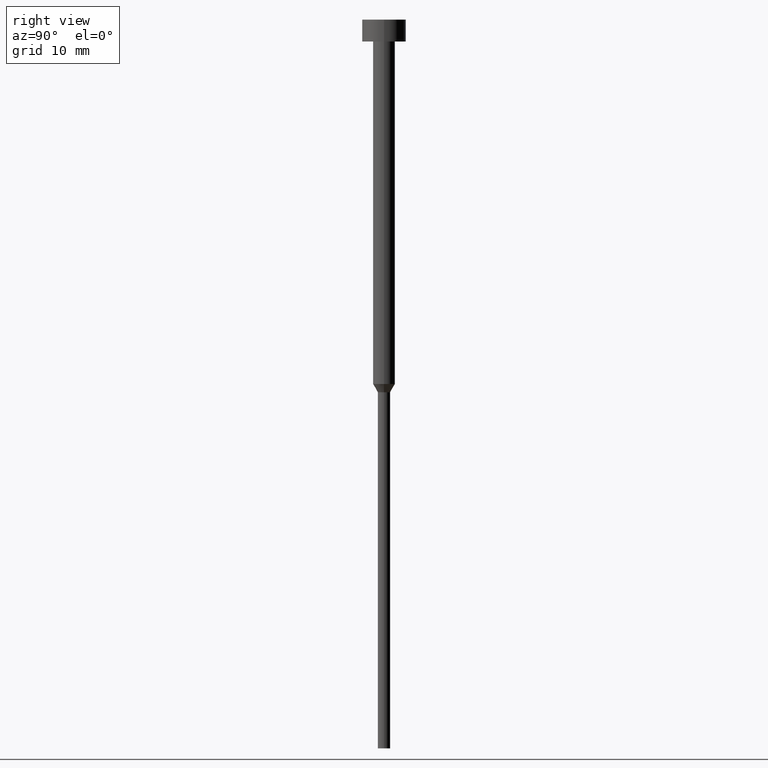
[diagram: clean part render]
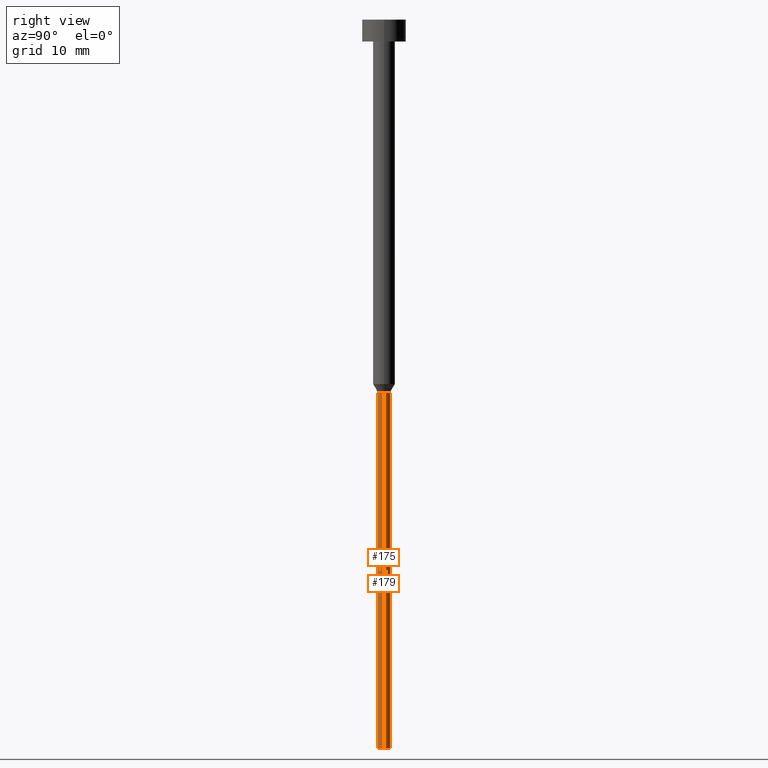
[diagram: same view with one multi-face feature highlighted, each face labeled with its STEP entity id]
A machine part, right view. The highlighted faces form ONE feature: a constant-radius fillet chain: 2 tangent blend faces with common blend radius 0.85 mm. The faces share edges in the B-rep.
Their STEP definitions:
[1] entity #175 (Cylinder):
#5 = ORIENTED_EDGE ( 'NONE', *, *, #164, .F. ) ;
#28 = CARTESIAN_POINT ( 'NONE',  ( -0.8499999999999998668, 1.040949779275250017E-16, 0.000000000000000000 ) ) ;
#37 = VERTEX_POINT ( 'NONE', #330 ) ;
#43 = AXIS2_PLACEMENT_3D ( 'NONE', #79, #327, #243 ) ;
#53 = DIRECTION ( 'NONE',  ( -0.000000000000000000, -0.000000000000000000, 1.000000000000000000 ) ) ;
#55 = CARTESIAN_POINT ( 'NONE',  ( 0.8499999999999998668, 0.000000000000000000, -51.12583302491977122 ) ) ;
#76 = VERTEX_POINT ( 'NONE', #304 ) ;
#79 = CARTESIAN_POINT ( 'NONE',  ( 0.000000000000000000, 0.000000000000000000, 0.000000000000000000 ) ) ;
#80 = EDGE_CURVE ( 'NONE', #233, #37, #154, .T. ) ;
#87 = CARTESIAN_POINT ( 'NONE',  ( 0.000000000000000000, 0.000000000000000000, -100.0000000000000000 ) ) ;
#107 = DIRECTION ( 'NONE',  ( -0.000000000000000000, -0.000000000000000000, 1.000000000000000000 ) ) ;
#110 = CARTESIAN_POINT ( 'NONE',  ( 0.000000000000000000, 0.000000000000000000, -51.12583302491977122 ) ) ;
#114 = DIRECTION ( 'NONE',  ( -0.000000000000000000, -0.000000000000000000, 1.000000000000000000 ) ) ;
#144 = CARTESIAN_POINT ( 'NONE',  ( 0.8499999999999998668, 0.000000000000000000, 0.000000000000000000 ) ) ;
#148 = CIRCLE ( 'NONE', #277, 0.8499999999999998668 ) ;
#154 = CIRCLE ( 'NONE', #289, 0.8499999999999998668 ) ;
#161 = EDGE_CURVE ( 'NONE', #233, #76, #184, .T. ) ;
#164 = EDGE_CURVE ( 'NONE', #76, #234, #148, .T. ) ;
#165 = DIRECTION ( 'NONE',  ( 1.000000000000000000, 0.000000000000000000, 0.000000000000000000 ) ) ;
#173 = VECTOR ( 'NONE', #107, 1000.000000000000000 ) ;
#175 = ADVANCED_FACE ( 'NONE', ( #354 ), #245, .T. ) ;
#184 = LINE ( 'NONE', #28, #195 ) ;
#186 = ORIENTED_EDGE ( 'NONE', *, *, #161, .F. ) ;
#194 = DIRECTION ( 'NONE',  ( 1.000000000000000000, 0.000000000000000000, 0.000000000000000000 ) ) ;
#195 = VECTOR ( 'NONE', #114, 1000.000000000000000 ) ;
#200 = DIRECTION ( 'NONE',  ( -0.000000000000000000, -0.000000000000000000, 1.000000000000000000 ) ) ;
#210 = EDGE_LOOP ( 'NONE', ( #186, #279, #256, #5 ) ) ;
#228 = CARTESIAN_POINT ( 'NONE',  ( -0.8499999999999998668, 1.040949779275250017E-16, -100.0000000000000000 ) ) ;
#233 = VERTEX_POINT ( 'NONE', #228 ) ;
#234 = VERTEX_POINT ( 'NONE', #55 ) ;
#243 = DIRECTION ( 'NONE',  ( 1.000000000000000000, 0.000000000000000000, 0.000000000000000000 ) ) ;
#245 = CYLINDRICAL_SURFACE ( 'NONE', #43, 0.8499999999999998668 ) ;
#247 = LINE ( 'NONE', #144, #173 ) ;
#256 = ORIENTED_EDGE ( 'NONE', *, *, #312, .T. ) ;
#277 = AXIS2_PLACEMENT_3D ( 'NONE', #110, #200, #194 ) ;
#279 = ORIENTED_EDGE ( 'NONE', *, *, #80, .T. ) ;
#289 = AXIS2_PLACEMENT_3D ( 'NONE', #87, #53, #165 ) ;
#304 = CARTESIAN_POINT ( 'NONE',  ( -0.8499999999999998668, 1.040949779275250017E-16, -51.12583302491977122 ) ) ;
#312 = EDGE_CURVE ( 'NONE', #37, #234, #247, .T. ) ;
#327 = DIRECTION ( 'NONE',  ( -0.000000000000000000, -0.000000000000000000, 1.000000000000000000 ) ) ;
#330 = CARTESIAN_POINT ( 'NONE',  ( 0.8499999999999998668, 0.000000000000000000, -100.0000000000000000 ) ) ;
#354 = FACE_OUTER_BOUND ( 'NONE', #210, .T. ) ;
[2] entity #179 (Cylinder):
#1 = DIRECTION ( 'NONE',  ( -0.000000000000000000, -0.000000000000000000, 1.000000000000000000 ) ) ;
#6 = CIRCLE ( 'NONE', #282, 0.8499999999999998668 ) ;
#7 = CYLINDRICAL_SURFACE ( 'NONE', #74, 0.8499999999999998668 ) ;
#28 = CARTESIAN_POINT ( 'NONE',  ( -0.8499999999999998668, 1.040949779275250017E-16, 0.000000000000000000 ) ) ;
#31 = EDGE_CURVE ( 'NONE', #234, #76, #128, .T. ) ;
#35 = CARTESIAN_POINT ( 'NONE',  ( 0.000000000000000000, 0.000000000000000000, -51.12583302491977122 ) ) ;
#37 = VERTEX_POINT ( 'NONE', #330 ) ;
#55 = CARTESIAN_POINT ( 'NONE',  ( 0.8499999999999998668, 0.000000000000000000, -51.12583302491977122 ) ) ;
#74 = AXIS2_PLACEMENT_3D ( 'NONE', #139, #1, #224 ) ;
#76 = VERTEX_POINT ( 'NONE', #304 ) ;
#97 = ORIENTED_EDGE ( 'NONE', *, *, #161, .T. ) ;
#105 = ORIENTED_EDGE ( 'NONE', *, *, #312, .F. ) ;
#107 = DIRECTION ( 'NONE',  ( -0.000000000000000000, -0.000000000000000000, 1.000000000000000000 ) ) ;
#114 = DIRECTION ( 'NONE',  ( -0.000000000000000000, -0.000000000000000000, 1.000000000000000000 ) ) ;
#126 = ORIENTED_EDGE ( 'NONE', *, *, #219, .T. ) ;
#128 = CIRCLE ( 'NONE', #320, 0.8499999999999998668 ) ;
#139 = CARTESIAN_POINT ( 'NONE',  ( 0.000000000000000000, 0.000000000000000000, 0.000000000000000000 ) ) ;
#144 = CARTESIAN_POINT ( 'NONE',  ( 0.8499999999999998668, 0.000000000000000000, 0.000000000000000000 ) ) ;
#161 = EDGE_CURVE ( 'NONE', #233, #76, #184, .T. ) ;
#166 = CARTESIAN_POINT ( 'NONE',  ( 0.000000000000000000, 0.000000000000000000, -100.0000000000000000 ) ) ;
#173 = VECTOR ( 'NONE', #107, 1000.000000000000000 ) ;
#179 = ADVANCED_FACE ( 'NONE', ( #246 ), #7, .T. ) ;
#184 = LINE ( 'NONE', #28, #195 ) ;
#188 = ORIENTED_EDGE ( 'NONE', *, *, #31, .F. ) ;
#195 = VECTOR ( 'NONE', #114, 1000.000000000000000 ) ;
#219 = EDGE_CURVE ( 'NONE', #37, #233, #6, .T. ) ;
#222 = DIRECTION ( 'NONE',  ( 1.000000000000000000, 0.000000000000000000, 0.000000000000000000 ) ) ;
#224 = DIRECTION ( 'NONE',  ( 1.000000000000000000, 0.000000000000000000, 0.000000000000000000 ) ) ;
#228 = CARTESIAN_POINT ( 'NONE',  ( -0.8499999999999998668, 1.040949779275250017E-16, -100.0000000000000000 ) ) ;
#230 = DIRECTION ( 'NONE',  ( 1.000000000000000000, 0.000000000000000000, 0.000000000000000000 ) ) ;
#233 = VERTEX_POINT ( 'NONE', #228 ) ;
#234 = VERTEX_POINT ( 'NONE', #55 ) ;
#246 = FACE_OUTER_BOUND ( 'NONE', #350, .T. ) ;
#247 = LINE ( 'NONE', #144, #173 ) ;
#250 = DIRECTION ( 'NONE',  ( -0.000000000000000000, -0.000000000000000000, 1.000000000000000000 ) ) ;
#282 = AXIS2_PLACEMENT_3D ( 'NONE', #166, #328, #222 ) ;
#304 = CARTESIAN_POINT ( 'NONE',  ( -0.8499999999999998668, 1.040949779275250017E-16, -51.12583302491977122 ) ) ;
#312 = EDGE_CURVE ( 'NONE', #37, #234, #247, .T. ) ;
#320 = AXIS2_PLACEMENT_3D ( 'NONE', #35, #250, #230 ) ;
#328 = DIRECTION ( 'NONE',  ( -0.000000000000000000, -0.000000000000000000, 1.000000000000000000 ) ) ;
#330 = CARTESIAN_POINT ( 'NONE',  ( 0.8499999999999998668, 0.000000000000000000, -100.0000000000000000 ) ) ;
#350 = EDGE_LOOP ( 'NONE', ( #126, #97, #188, #105 ) ) ;